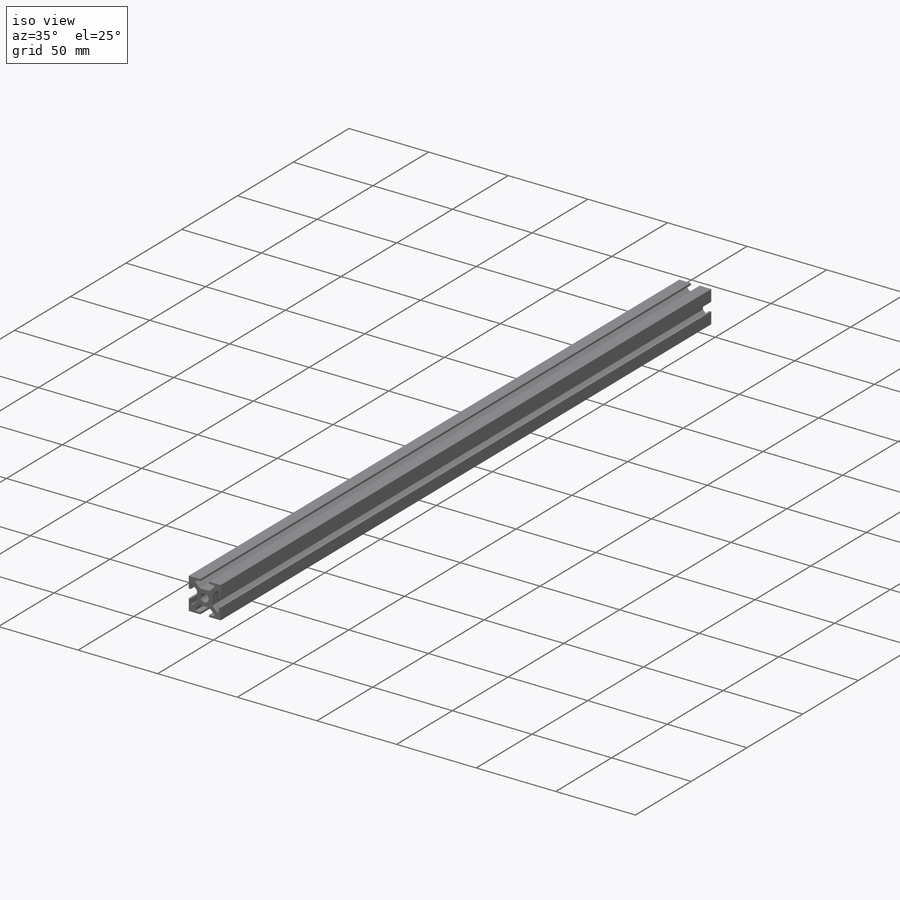
[diagram: iso view]
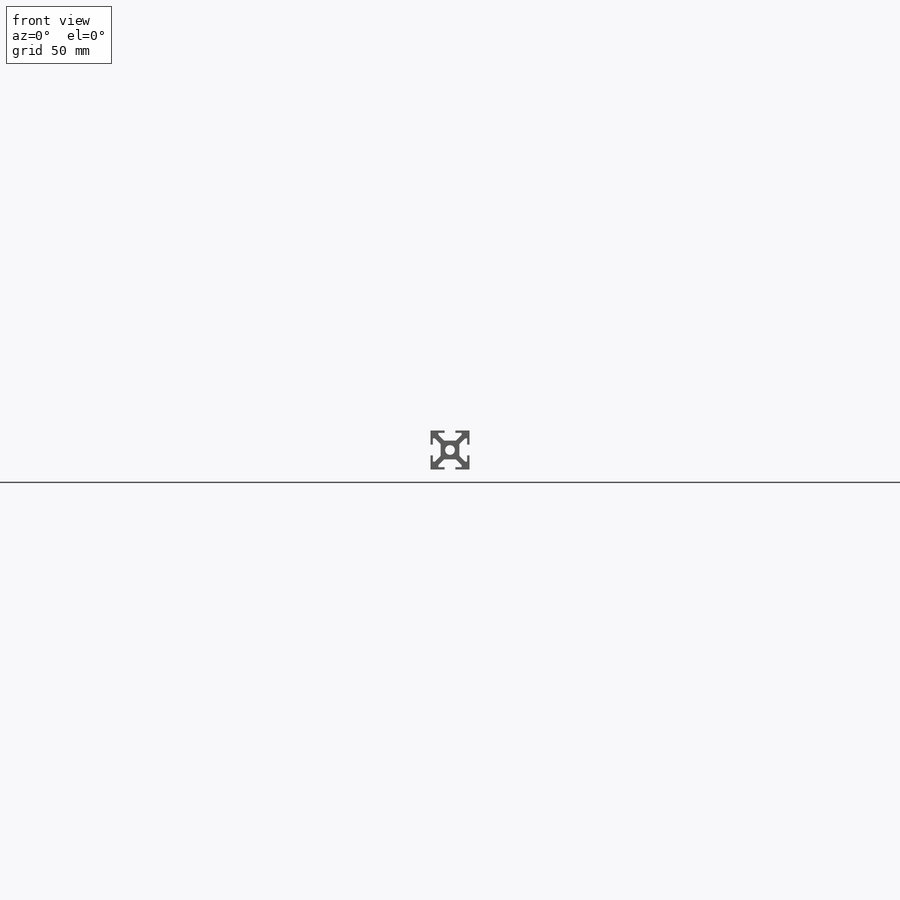
[diagram: front view]
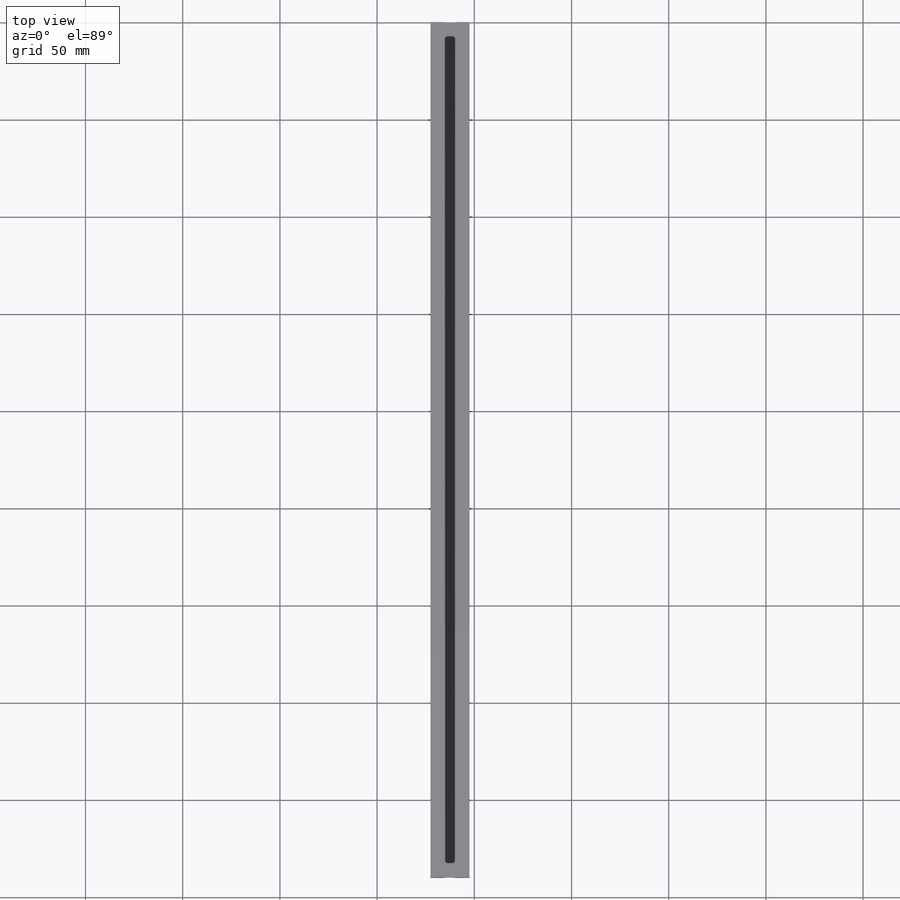
[diagram: top view]
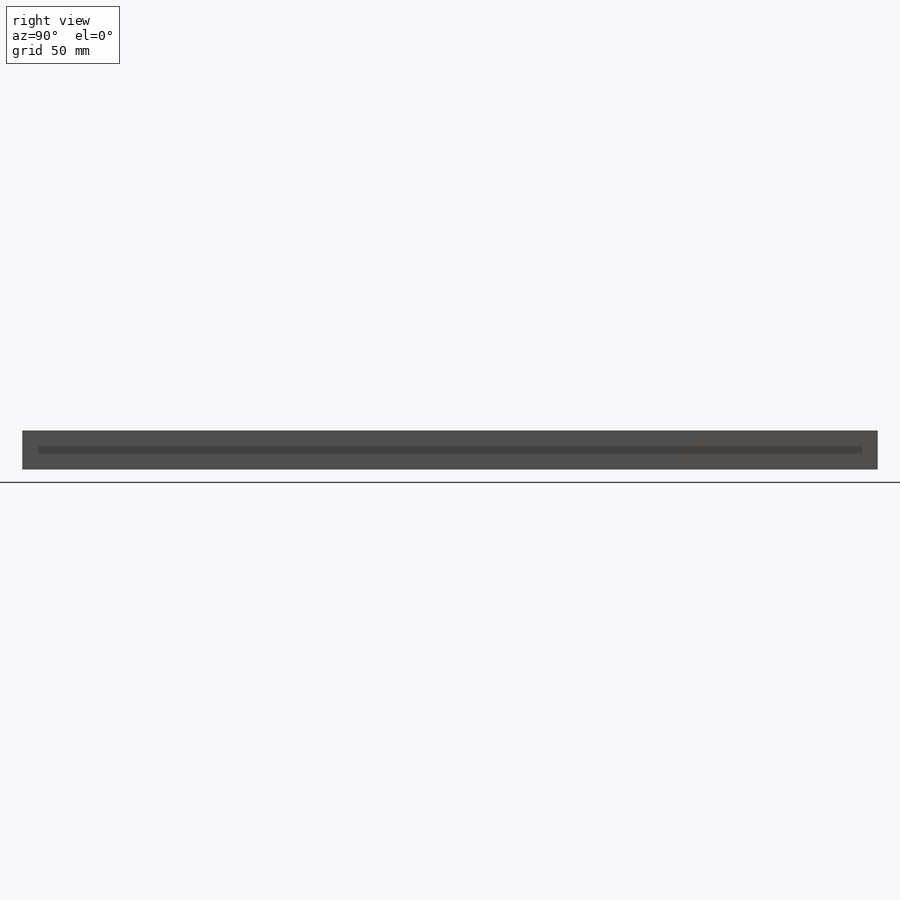
[diagram: right view]
SOLIDWORKS PART (.sldprt)
format: sldprt  version: not decoded by parser v0  size: 297,984 bytes
history: native  units: mm
features: sketch x4, plane x3, cut_extrude x3, material x1, extrude x1 (+8 scaffold rows collapsed)
feature tree (20):
  scaffold x8  (default folders/planes/origin — collapsed)
  material  "Matériau <non spécifié>"
  plane  "Plan de face"
  plane  "Plan de dessus"
  plane  "Plan de droite"
  sketch  "Esquisse1"  dims[D1=20.0mm D2=20.0mm]
  extrude  "Boss.-Extru.1"  Depth=440mm
  sketch  "Esquisse2"  dims[c1.D1=1.2mm c1.D2=1.2mm c1.D3=1.2mm c1.D4=1.2mm c1.D5=5.5mm c1.D6=5.5mm c1.D7=5.5mm c1.D8=5.5mm c1.D9=7.25mm c1.D10=7.25mm c1.D11=1.2mm c2.D11=90.0deg c3.D11=7.25mm c3.D12=7.25mm]
  cut_extrude  "Enlèv. mat.-Extru.1"  [1 undecoded]
  sketch  "Esquisse3"  dims[D1=4.0mm D2=4.0mm D3=4.0mm D4=4.0mm D5=12.0mm D6=4.0mm D7=12.0mm D8=4.0mm D9=0.0mm D10=0.0mm D11=4.0mm D12=12.0mm D13=12.0mm D14=4.0mm D15=1.2mm D16=1.2mm D17=3.0mm D18=3.0mm D19=3.0mm D20=3.0mm D21=3.0mm D22=3.0mm D23=3.0mm D24=3.0mm D25=3.0mm D26=3.0mm D27=3.0mm D28=3.0mm D29=3.0mm D30=3.0mm D31=3.0mm D32=3.0mm]
  cut_extrude  "Enlèv. mat.-Extru.2"  [1 undecoded]
  sketch  "Esquisse4"  dims[D1=5.0mm D2=4.8mm D3=4.8mm]
  cut_extrude  "Enlèv. mat.-Extru.3"  [1 undecoded]
decode coverage: 5 of 8 modeling features carry decoded parameters
note: 3 parameter values undecoded
summary: no parameter record found for 3 features
note: suppression state not decoded; provenance and decode notes live in map.json
